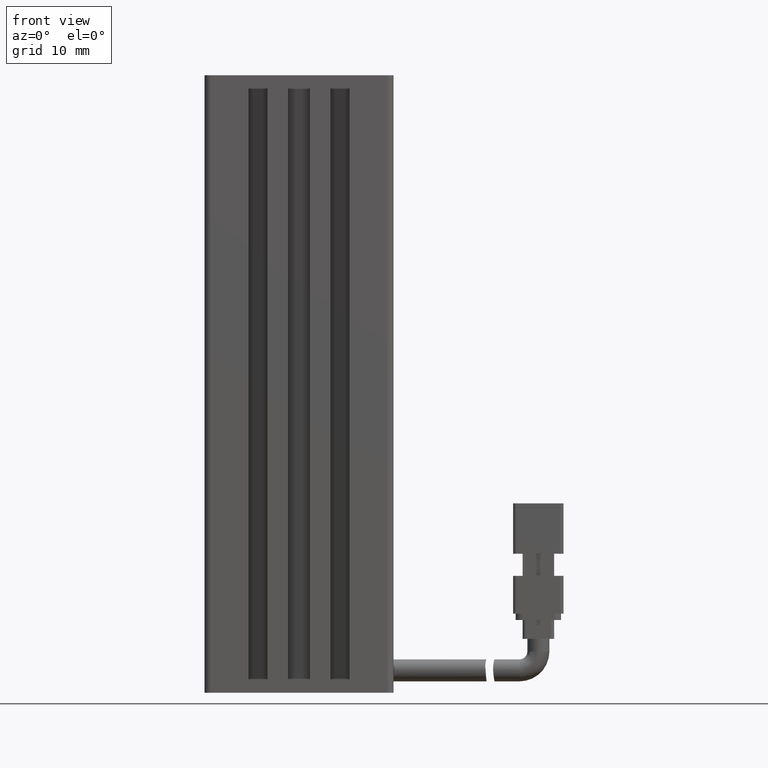
[diagram: clean part render]
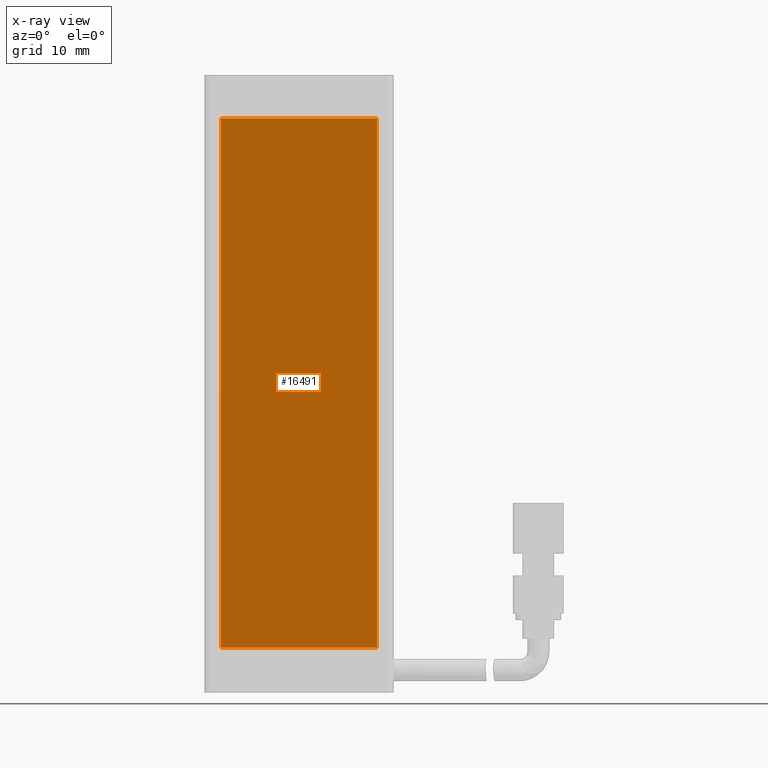
[diagram: x-ray — body ghosted, one internal face saturated and labeled with its STEP entity id]
A machine part, front view, then the same camera in x-ray: the body is ghosted and one INTERNAL B-rep face — a face not visible from any outside direction — is saturated and labeled: STEP entity #16491.
In plain terms, the highlighted planar face has unit normal (0, 1, 0).
Its self-contained STEP definition (entity closure, byte-faithful):
#1976 = LINE ( 'NONE', #30704, #21162 ) ;
#3461 = CARTESIAN_POINT ( 'NONE',  ( 53.32537974683541600, 20.19594479660386800, -72.84999999999996600 ) ) ;
#3824 = DIRECTION ( 'NONE',  ( 0.0000000000000000000, 1.000000000000000000, 0.0000000000000000000 ) ) ;
#5805 = CARTESIAN_POINT ( 'NONE',  ( 53.32537974683541600, 20.19594479660386800, -114.8499999999999800 ) ) ;
#6786 = DIRECTION ( 'NONE',  ( 1.000000000000000000, -0.0000000000000000000, -0.0000000000000000000 ) ) ;
#7006 = VECTOR ( 'NONE', #7720, 1000.000000000000000 ) ;
#7720 = DIRECTION ( 'NONE',  ( 0.0000000000000000000, -0.0000000000000000000, 1.000000000000000000 ) ) ;
#7788 = CARTESIAN_POINT ( 'NONE',  ( 40.92537974683541800, 20.19594479660386800, -156.8499999999999900 ) ) ;
#7968 = CARTESIAN_POINT ( 'NONE',  ( 28.52537974683541600, 20.19594479660386800, -72.84999999999996600 ) ) ;
#8528 = PLANE ( 'NONE',  #11928 ) ;
#8801 = EDGE_CURVE ( 'NONE', #13027, #13134, #1976, .T. ) ;
#9459 = ORIENTED_EDGE ( 'NONE', *, *, #30295, .F. ) ;
#11759 = VERTEX_POINT ( 'NONE', #25415 ) ;
#11928 = AXIS2_PLACEMENT_3D ( 'NONE', #18181, #3824, #20664 ) ;
#12229 = EDGE_LOOP ( 'NONE', ( #9459, #16993, #29983, #31222 ) ) ;
#13027 = VERTEX_POINT ( 'NONE', #7968 ) ;
#13134 = VERTEX_POINT ( 'NONE', #3461 ) ;
#13281 = LINE ( 'NONE', #7788, #26131 ) ;
#15066 = CARTESIAN_POINT ( 'NONE',  ( 28.52537974683541600, 20.19594479660386800, -114.8499999999999800 ) ) ;
#15188 = EDGE_CURVE ( 'NONE', #13134, #11759, #24880, .T. ) ;
#15198 = CARTESIAN_POINT ( 'NONE',  ( 28.52537974683541600, 20.19594479660386800, -156.8499999999999900 ) ) ;
#16491 = ADVANCED_FACE ( 'NONE', ( #18315 ), #8528, .F. ) ;
#16993 = ORIENTED_EDGE ( 'NONE', *, *, #30845, .F. ) ;
#18181 = CARTESIAN_POINT ( 'NONE',  ( 40.92537974683541800, 20.19594479660386800, -114.8499999999999800 ) ) ;
#18315 = FACE_OUTER_BOUND ( 'NONE', #12229, .T. ) ;
#18459 = VECTOR ( 'NONE', #27504, 1000.000000000000000 ) ;
#20664 = DIRECTION ( 'NONE',  ( -0.0000000000000000000, 0.0000000000000000000, -1.000000000000000000 ) ) ;
#21162 = VECTOR ( 'NONE', #6786, 1000.000000000000000 ) ;
#22988 = VERTEX_POINT ( 'NONE', #15198 ) ;
#24646 = DIRECTION ( 'NONE',  ( -1.000000000000000000, 0.0000000000000000000, 0.0000000000000000000 ) ) ;
#24880 = LINE ( 'NONE', #5805, #18459 ) ;
#25415 = CARTESIAN_POINT ( 'NONE',  ( 53.32537974683541600, 20.19594479660386800, -156.8499999999999900 ) ) ;
#25466 = LINE ( 'NONE', #15066, #7006 ) ;
#26131 = VECTOR ( 'NONE', #24646, 1000.000000000000000 ) ;
#27504 = DIRECTION ( 'NONE',  ( -0.0000000000000000000, 0.0000000000000000000, -1.000000000000000000 ) ) ;
#29983 = ORIENTED_EDGE ( 'NONE', *, *, #15188, .F. ) ;
#30295 = EDGE_CURVE ( 'NONE', #22988, #13027, #25466, .T. ) ;
#30704 = CARTESIAN_POINT ( 'NONE',  ( 40.92537974683541800, 20.19594479660386800, -72.84999999999996600 ) ) ;
#30845 = EDGE_CURVE ( 'NONE', #11759, #22988, #13281, .T. ) ;
#31222 = ORIENTED_EDGE ( 'NONE', *, *, #8801, .F. ) ;